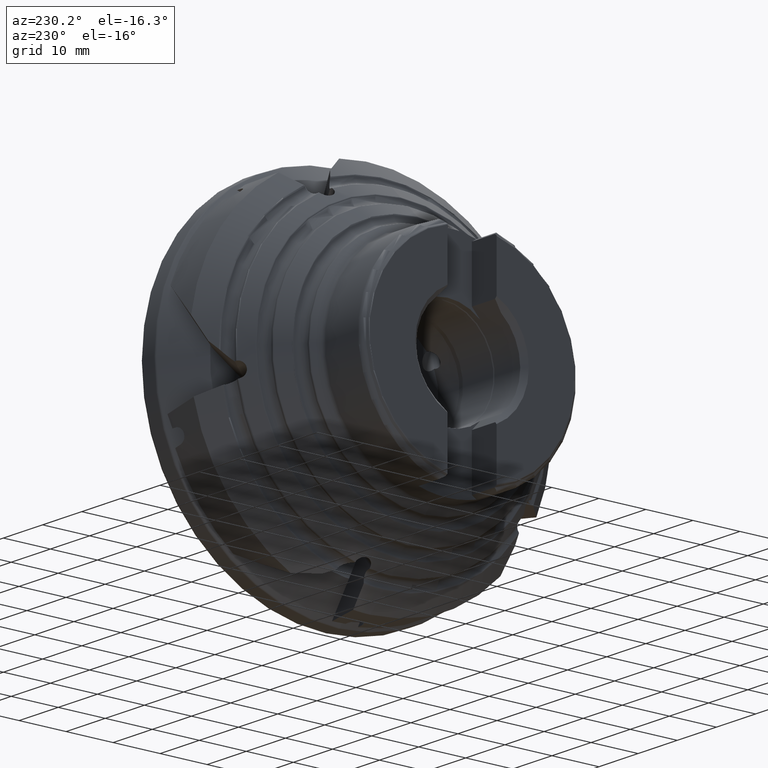
[diagram: clean part render]
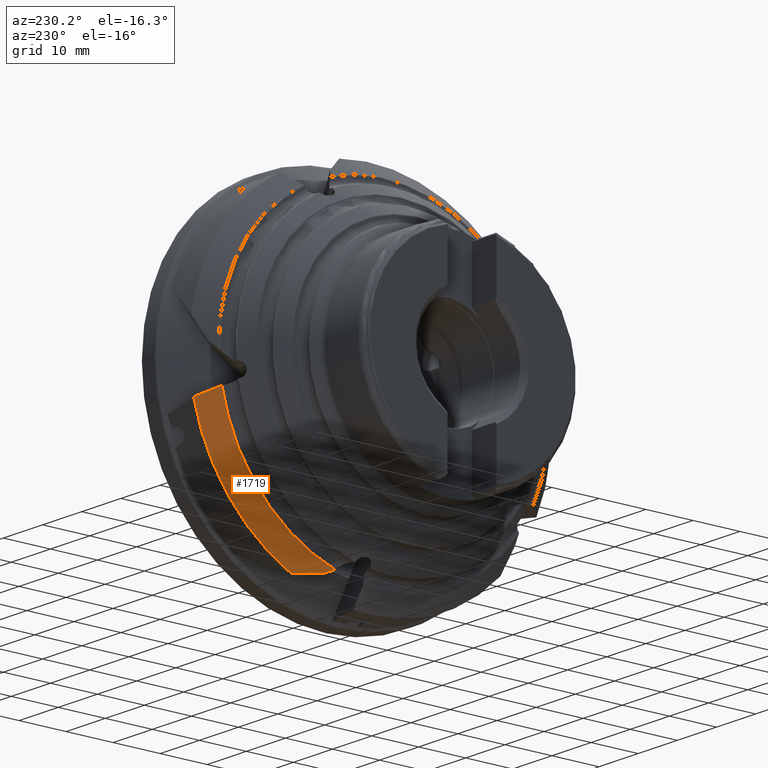
[diagram: same view with one face highlighted and labeled with its STEP entity id]
A machine part, auxiliary view. The second image highlights one B-rep face of the part: STEP entity #1719.
In plain terms, the highlighted conical surface has half-angle 44.839 deg.
Its self-contained STEP definition (entity closure, byte-faithful):
#574 = VERTEX_POINT ( 'NONE', #1578 ) ;
#652 = VERTEX_POINT ( 'NONE', #5470 ) ;
#653 = VERTEX_POINT ( 'NONE', #5473 ) ;
#665 = VERTEX_POINT ( 'NONE', #5619 ) ;
#737 = VERTEX_POINT ( 'NONE', #5485 ) ;
#865 = CONICAL_SURFACE ( 'NONE', #10454, 38.50000000000000000, 0.7825856841125634600 ) ;
#869 = FACE_OUTER_BOUND ( 'NONE', #1353, .T. ) ;
#1353 = EDGE_LOOP ( 'NONE', ( #2381, #1913, #2357, #2246, #2179 ) ) ;
#1578 = CARTESIAN_POINT ( 'NONE',  ( -21.08445643675846900, 34.44526382076868000, -6.668400130292243800 ) ) ;
#1719 = ADVANCED_FACE ( 'NONE', ( #869 ), #865, .T. ) ;
#1913 = ORIENTED_EDGE ( 'NONE', *, *, #2663, .T. ) ;
#2179 = ORIENTED_EDGE ( 'NONE', *, *, #5111, .F. ) ;
#2246 = ORIENTED_EDGE ( 'NONE', *, *, #5105, .F. ) ;
#2357 = ORIENTED_EDGE ( 'NONE', *, *, #5193, .F. ) ;
#2381 = ORIENTED_EDGE ( 'NONE', *, *, #2672, .T. ) ;
#2663 = EDGE_CURVE ( 'NONE', #574, #737, #5739, .T. ) ;
#2672 = EDGE_CURVE ( 'NONE', #653, #574, #8731, .T. ) ;
#3021 = DIRECTION ( 'NONE',  ( 0.0000000000000000000, 0.0000000000000000000, -1.000000000000000000 ) ) ;
#3023 = CARTESIAN_POINT ( 'NONE',  ( -17.65000000000000600, 0.0000000000000000000, 0.0000000000000000000 ) ) ;
#3024 = DIRECTION ( 'NONE',  ( 1.000000000000000000, -0.0000000000000000000, -0.0000000000000000000 ) ) ;
#5105 = EDGE_CURVE ( 'NONE', #665, #652, #5723, .T. ) ;
#5111 = EDGE_CURVE ( 'NONE', #653, #665, #5796, .T. ) ;
#5193 = EDGE_CURVE ( 'NONE', #652, #737, #8897, .T. ) ;
#5470 = CARTESIAN_POINT ( 'NONE',  ( -17.65000000000000200, 16.92752098296358900, -34.57902591704004200 ) ) ;
#5473 = CARTESIAN_POINT ( 'NONE',  ( -21.08445643675847200, 10.29402974987928800, -33.54067249607016500 ) ) ;
#5485 = CARTESIAN_POINT ( 'NONE',  ( -17.65000000000000600, 37.57528850448976200, -8.387353206128853600 ) ) ;
#5619 = CARTESIAN_POINT ( 'NONE',  ( -19.87204454572544100, 12.01246772163846700, -34.24463688226919800 ) ) ;
#5723 = B_SPLINE_CURVE_WITH_KNOTS ( 'NONE', 3,
 ( #9438, #9437, #9443, #9444 ),
 .UNSPECIFIED., .F., .F.,
 ( 4, 4 ),
 ( 0.003251734000605565600, 0.008654796503576669300 ),
 .UNSPECIFIED. ) ;
#5739 = B_SPLINE_CURVE_WITH_KNOTS ( 'NONE', 3,
 ( #7125, #7129, #7134, #7135 ),
 .UNSPECIFIED., .F., .F.,
 ( 4, 4 ),
 ( 2.891632878679154200E-007, 0.004954816912087249400 ),
 .UNSPECIFIED. ) ;
#5796 = B_SPLINE_CURVE_WITH_KNOTS ( 'NONE', 3,
 ( #9457, #9453, #9461, #9462 ),
 .UNSPECIFIED., .F., .F.,
 ( 4, 4 ),
 ( 3.699288901698974700E-007, 0.002218092745508278000 ),
 .UNSPECIFIED. ) ;
#6090 = CARTESIAN_POINT ( 'NONE',  ( -17.65000000000000600, 0.0000000000000000000, 0.0000000000000000000 ) ) ;
#6091 = DIRECTION ( 'NONE',  ( 1.000000000000000000, -0.0000000000000000000, -0.0000000000000000000 ) ) ;
#6092 = DIRECTION ( 'NONE',  ( 0.0000000000000000000, 0.0000000000000000000, -1.000000000000000000 ) ) ;
#6395 = AXIS2_PLACEMENT_3D ( 'NONE', #7165, #7166, #7167 ) ;
#6537 = AXIS2_PLACEMENT_3D ( 'NONE', #6090, #6091, #6092 ) ;
#7125 = CARTESIAN_POINT ( 'NONE',  ( -21.08445643675846900, 34.44526382076868000, -6.668400130292243800 ) ) ;
#7129 = CARTESIAN_POINT ( 'NONE',  ( -19.94218869060203400, 35.49122369808762300, -7.241713835418682500 ) ) ;
#7134 = CARTESIAN_POINT ( 'NONE',  ( -18.79714628752285700, 36.53433577430739400, -7.814669328115033200 ) ) ;
#7135 = CARTESIAN_POINT ( 'NONE',  ( -17.65000000000000600, 37.57528850448976200, -8.387353206128853600 ) ) ;
#7165 = CARTESIAN_POINT ( 'NONE',  ( -21.08445643675846900, 0.0000000000000000000, 0.0000000000000000000 ) ) ;
#7166 = DIRECTION ( 'NONE',  ( 1.000000000000000000, -0.0000000000000000000, -0.0000000000000000000 ) ) ;
#7167 = DIRECTION ( 'NONE',  ( 0.0000000000000000000, 0.0000000000000000000, -1.000000000000000000 ) ) ;
#8731 = CIRCLE ( 'NONE', #6395, 35.08480810806919000 ) ;
#8897 = CIRCLE ( 'NONE', #6537, 38.50000000000000000 ) ;
#9437 = CARTESIAN_POINT ( 'NONE',  ( -19.17304521262005000, 13.66505004356132800, -34.40154024612156300 ) ) ;
#9438 = CARTESIAN_POINT ( 'NONE',  ( -19.87204454572544100, 12.01246772163846700, -34.24463688226919800 ) ) ;
#9443 = CARTESIAN_POINT ( 'NONE',  ( -18.43020218748028000, 15.30266314255739200, -34.51064686065806300 ) ) ;
#9444 = CARTESIAN_POINT ( 'NONE',  ( -17.65000000000000200, 16.92752098296358900, -34.57902591704004200 ) ) ;
#9453 = CARTESIAN_POINT ( 'NONE',  ( -20.68478915862640100, 10.86805294480036800, -33.78021999905584500 ) ) ;
#9457 = CARTESIAN_POINT ( 'NONE',  ( -21.08445643675847200, 10.29402974987928800, -33.54067249607016500 ) ) ;
#9461 = CARTESIAN_POINT ( 'NONE',  ( -20.28051019275454100, 11.44082723633348500, -34.01471972926922400 ) ) ;
#9462 = CARTESIAN_POINT ( 'NONE',  ( -19.87204454572544100, 12.01246772163846700, -34.24463688226919800 ) ) ;
#10454 = AXIS2_PLACEMENT_3D ( 'NONE', #3023, #3024, #3021 ) ;